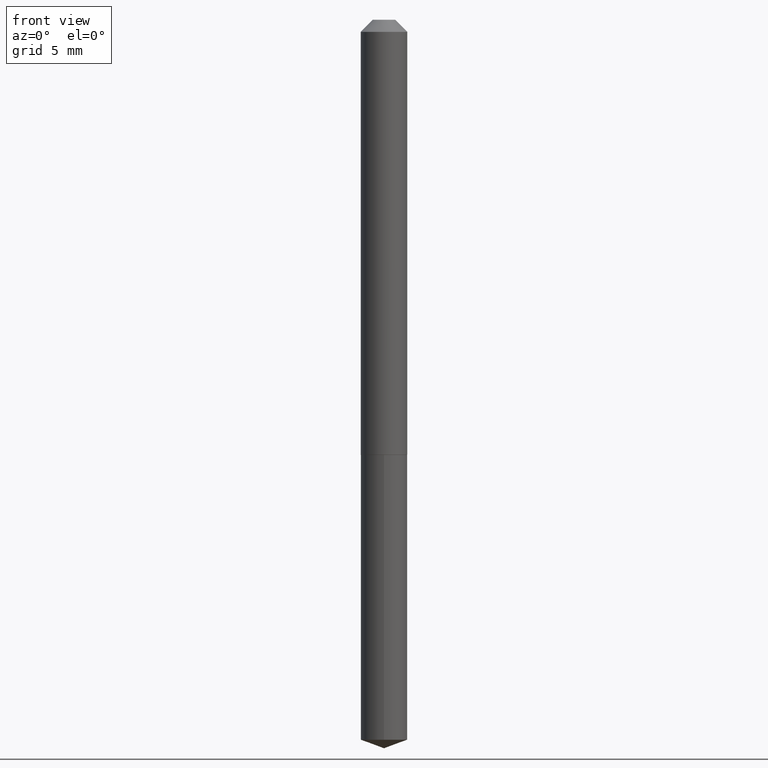
[diagram: clean part render]
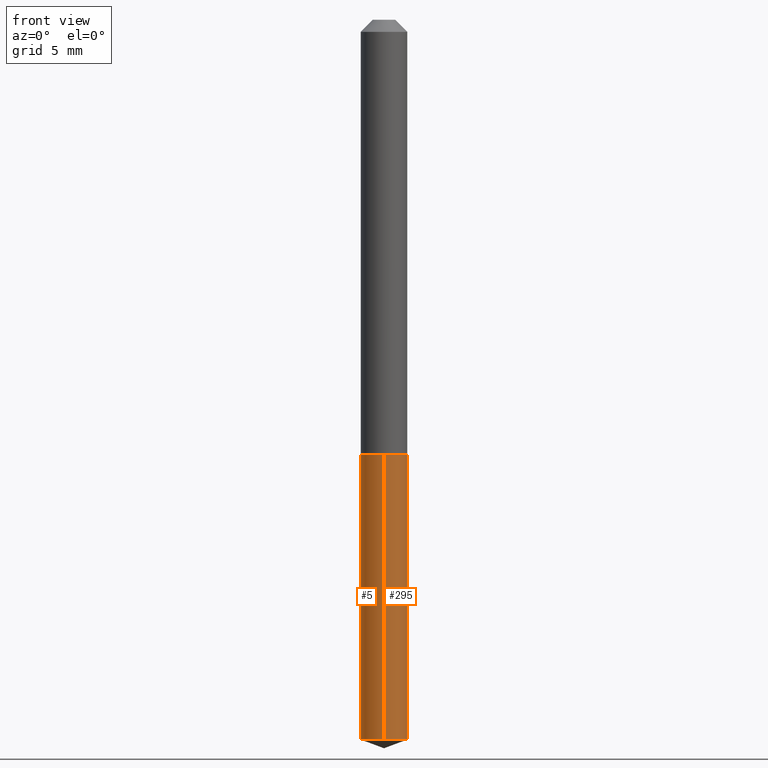
[diagram: same view with one multi-face feature highlighted, each face labeled with its STEP entity id]
A machine part, front view. The highlighted faces form ONE feature: a constant-radius fillet chain: 2 tangent blend faces with common blend radius 1.524 mm. The faces share edges in the B-rep.
Their STEP definitions:
[1] entity #5 (Cylinder):
#1 = EDGE_CURVE ( 'NONE', #187, #121, #122, .T. ) ;
#5 = ADVANCED_FACE ( 'NONE', ( #229 ), #17, .T. ) ;
#7 = VECTOR ( 'NONE', #178, 39.37007874015748143 ) ;
#17 = CYLINDRICAL_SURFACE ( 'NONE', #280, 0.05999999999999999778 ) ;
#29 = ORIENTED_EDGE ( 'NONE', *, *, #325, .T. ) ;
#100 = AXIS2_PLACEMENT_3D ( 'NONE', #256, #248, #179 ) ;
#103 = CARTESIAN_POINT ( 'NONE',  ( 4.263256414560874594E-16, 0.05999999999999609118, -1.120000000000000329 ) ) ;
#105 = LINE ( 'NONE', #103, #7 ) ;
#121 = VERTEX_POINT ( 'NONE', #254 ) ;
#122 = CIRCLE ( 'NONE', #341, 0.05999999999999999778 ) ;
#142 = CARTESIAN_POINT ( 'NONE',  ( -4.189777606611485306E-16, -0.06000000000000391132, -1.119999999999999885 ) ) ;
#157 = DIRECTION ( 'NONE',  ( -2.445293592183444797E-29, 3.491732255266129750E-15, 1.000000000000000000 ) ) ;
#178 = DIRECTION ( 'NONE',  ( -2.445293592183444516E-29, 3.491732255266129750E-15, 1.000000000000000000 ) ) ;
#179 = DIRECTION ( 'NONE',  ( -6.982962677686265922E-15, -1.000000000000000000, 4.553079989440439092E-15 ) ) ;
#187 = VERTEX_POINT ( 'NONE', #221 ) ;
#197 = VERTEX_POINT ( 'NONE', #282 ) ;
#201 = EDGE_CURVE ( 'NONE', #197, #272, #266, .T. ) ;
#221 = CARTESIAN_POINT ( 'NONE',  ( 4.263256414561051594E-16, 0.05999999999999350991, -1.853161785944028361 ) ) ;
#229 = FACE_OUTER_BOUND ( 'NONE', #299, .T. ) ;
#231 = DIRECTION ( 'NONE',  ( -2.445293592183444797E-29, 3.491732255266129750E-15, 1.000000000000000000 ) ) ;
#232 = CARTESIAN_POINT ( 'NONE',  ( -4.189777606611485306E-16, -0.06000000000000391132, -1.119999999999999885 ) ) ;
#248 = DIRECTION ( 'NONE',  ( -2.445293592183444797E-29, 3.491732255266129750E-15, 1.000000000000000000 ) ) ;
#249 = ORIENTED_EDGE ( 'NONE', *, *, #1, .T. ) ;
#252 = DIRECTION ( 'NONE',  ( -2.445293592183444516E-29, 3.491732255266129750E-15, 1.000000000000000000 ) ) ;
#254 = CARTESIAN_POINT ( 'NONE',  ( -4.189777606611305347E-16, -0.06000000000000644401, -1.853161785944027695 ) ) ;
#256 = CARTESIAN_POINT ( 'NONE',  ( 2.738925062927352899E-29, -3.910459099504323400E-15, -1.120000000000000107 ) ) ;
#258 = LINE ( 'NONE', #232, #268 ) ;
#262 = DIRECTION ( 'NONE',  ( -6.982962677686265922E-15, -1.000000000000000000, 4.553079989440439092E-15 ) ) ;
#266 = CIRCLE ( 'NONE', #100, 0.05999999999999999778 ) ;
#268 = VECTOR ( 'NONE', #252, 39.37007874015748143 ) ;
#272 = VERTEX_POINT ( 'NONE', #142 ) ;
#277 = ORIENTED_EDGE ( 'NONE', *, *, #373, .F. ) ;
#280 = AXIS2_PLACEMENT_3D ( 'NONE', #344, #157, #262 ) ;
#282 = CARTESIAN_POINT ( 'NONE',  ( 4.263256414561055539E-16, 0.05999999999999609118, -1.120000000000000329 ) ) ;
#283 = ORIENTED_EDGE ( 'NONE', *, *, #201, .F. ) ;
#299 = EDGE_LOOP ( 'NONE', ( #277, #249, #29, #283 ) ) ;
#311 = DIRECTION ( 'NONE',  ( -6.982962677686265922E-15, -1.000000000000000000, 4.553079989440439092E-15 ) ) ;
#325 = EDGE_CURVE ( 'NONE', #121, #272, #258, .T. ) ;
#336 = CARTESIAN_POINT ( 'NONE',  ( 4.531720880130055286E-29, -6.470463755813608205E-15, -1.853161785944028139 ) ) ;
#341 = AXIS2_PLACEMENT_3D ( 'NONE', #336, #231, #311 ) ;
#344 = CARTESIAN_POINT ( 'NONE',  ( 2.738925062927352899E-29, -3.910459099504323400E-15, -1.120000000000000107 ) ) ;
#373 = EDGE_CURVE ( 'NONE', #187, #197, #105, .T. ) ;
[2] entity #295 (Cylinder):
#2 = ORIENTED_EDGE ( 'NONE', *, *, #25, .T. ) ;
#7 = VECTOR ( 'NONE', #178, 39.37007874015748143 ) ;
#20 = FACE_OUTER_BOUND ( 'NONE', #66, .T. ) ;
#23 = CYLINDRICAL_SURFACE ( 'NONE', #316, 0.05999999999999999778 ) ;
#25 = EDGE_CURVE ( 'NONE', #121, #187, #303, .T. ) ;
#34 = DIRECTION ( 'NONE',  ( -6.982962677686265922E-15, -1.000000000000000000, 4.553079989440439092E-15 ) ) ;
#52 = CARTESIAN_POINT ( 'NONE',  ( 2.738925062927352899E-29, -3.910459099504323400E-15, -1.120000000000000107 ) ) ;
#66 = EDGE_LOOP ( 'NONE', ( #2, #318, #247, #236 ) ) ;
#103 = CARTESIAN_POINT ( 'NONE',  ( 4.263256414560874594E-16, 0.05999999999999609118, -1.120000000000000329 ) ) ;
#105 = LINE ( 'NONE', #103, #7 ) ;
#107 = DIRECTION ( 'NONE',  ( -6.982962677686265922E-15, -1.000000000000000000, 4.553079989440439092E-15 ) ) ;
#120 = DIRECTION ( 'NONE',  ( -6.982962677686265922E-15, -1.000000000000000000, 4.553079989440439092E-15 ) ) ;
#121 = VERTEX_POINT ( 'NONE', #254 ) ;
#142 = CARTESIAN_POINT ( 'NONE',  ( -4.189777606611485306E-16, -0.06000000000000391132, -1.119999999999999885 ) ) ;
#154 = CARTESIAN_POINT ( 'NONE',  ( 4.531720880130055286E-29, -6.470463755813608205E-15, -1.853161785944028139 ) ) ;
#178 = DIRECTION ( 'NONE',  ( -2.445293592183444516E-29, 3.491732255266129750E-15, 1.000000000000000000 ) ) ;
#187 = VERTEX_POINT ( 'NONE', #221 ) ;
#197 = VERTEX_POINT ( 'NONE', #282 ) ;
#199 = DIRECTION ( 'NONE',  ( -2.445293592183444797E-29, 3.491732255266129750E-15, 1.000000000000000000 ) ) ;
#206 = DIRECTION ( 'NONE',  ( -2.445293592183444797E-29, 3.491732255266129750E-15, 1.000000000000000000 ) ) ;
#221 = CARTESIAN_POINT ( 'NONE',  ( 4.263256414561051594E-16, 0.05999999999999350991, -1.853161785944028361 ) ) ;
#230 = CARTESIAN_POINT ( 'NONE',  ( 2.738925062927352899E-29, -3.910459099504323400E-15, -1.120000000000000107 ) ) ;
#232 = CARTESIAN_POINT ( 'NONE',  ( -4.189777606611485306E-16, -0.06000000000000391132, -1.119999999999999885 ) ) ;
#236 = ORIENTED_EDGE ( 'NONE', *, *, #325, .F. ) ;
#242 = EDGE_CURVE ( 'NONE', #272, #197, #259, .T. ) ;
#247 = ORIENTED_EDGE ( 'NONE', *, *, #242, .F. ) ;
#252 = DIRECTION ( 'NONE',  ( -2.445293592183444516E-29, 3.491732255266129750E-15, 1.000000000000000000 ) ) ;
#254 = CARTESIAN_POINT ( 'NONE',  ( -4.189777606611305347E-16, -0.06000000000000644401, -1.853161785944027695 ) ) ;
#258 = LINE ( 'NONE', #232, #268 ) ;
#259 = CIRCLE ( 'NONE', #297, 0.05999999999999999778 ) ;
#268 = VECTOR ( 'NONE', #252, 39.37007874015748143 ) ;
#269 = DIRECTION ( 'NONE',  ( -2.445293592183444797E-29, 3.491732255266129750E-15, 1.000000000000000000 ) ) ;
#272 = VERTEX_POINT ( 'NONE', #142 ) ;
#282 = CARTESIAN_POINT ( 'NONE',  ( 4.263256414561055539E-16, 0.05999999999999609118, -1.120000000000000329 ) ) ;
#295 = ADVANCED_FACE ( 'NONE', ( #20 ), #23, .T. ) ;
#297 = AXIS2_PLACEMENT_3D ( 'NONE', #52, #199, #107 ) ;
#303 = CIRCLE ( 'NONE', #327, 0.05999999999999999778 ) ;
#316 = AXIS2_PLACEMENT_3D ( 'NONE', #230, #206, #34 ) ;
#318 = ORIENTED_EDGE ( 'NONE', *, *, #373, .T. ) ;
#325 = EDGE_CURVE ( 'NONE', #121, #272, #258, .T. ) ;
#327 = AXIS2_PLACEMENT_3D ( 'NONE', #154, #269, #120 ) ;
#373 = EDGE_CURVE ( 'NONE', #187, #197, #105, .T. ) ;